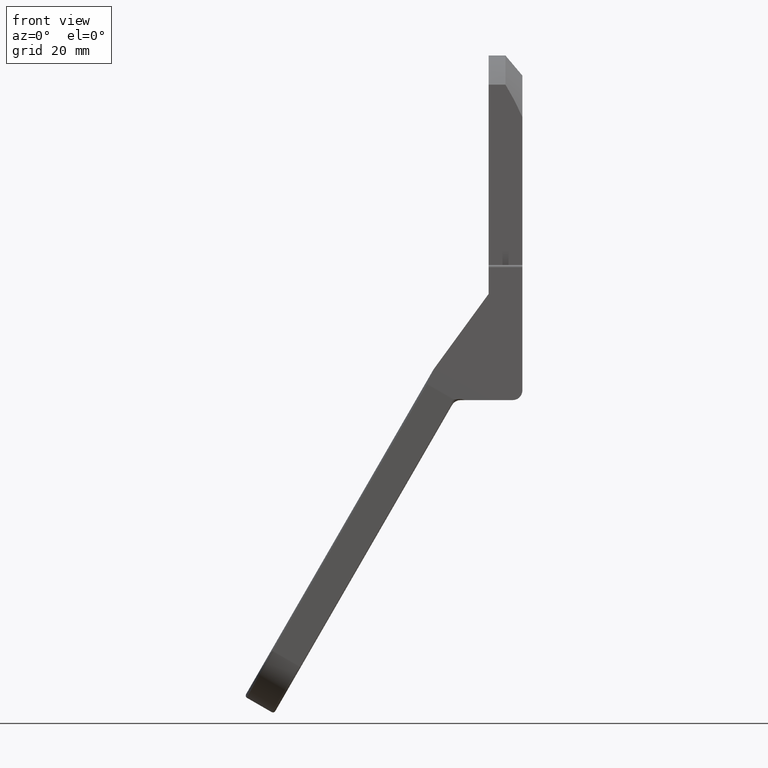
[diagram: clean part render]
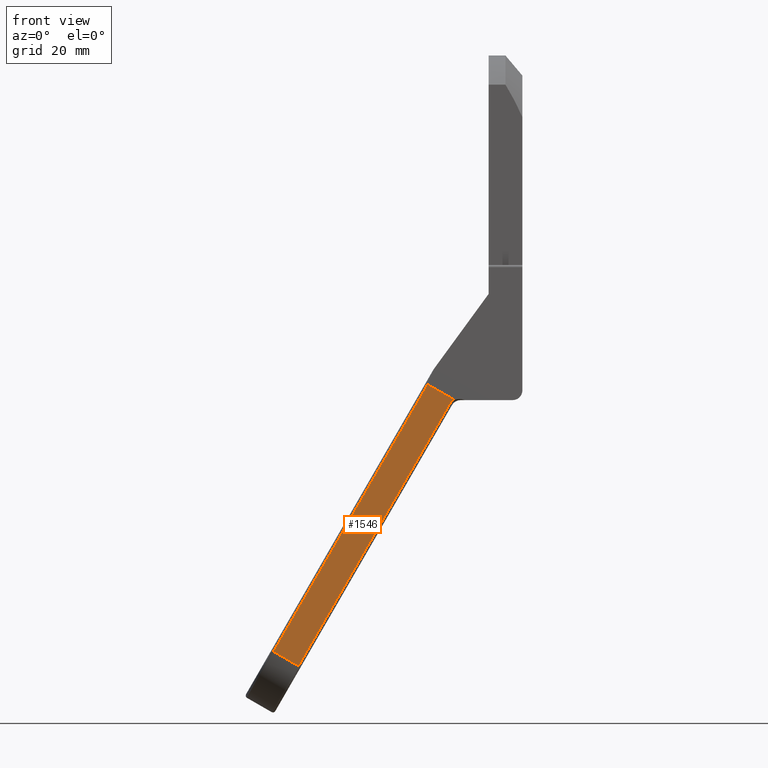
[diagram: same view with one face highlighted and labeled with its STEP entity id]
A machine part, front view. The second image highlights one B-rep face of the part: STEP entity #1546.
In plain terms, the highlighted face is a freeform B-spline surface patch.
Its self-contained STEP definition (entity closure, byte-faithful):
#462=CARTESIAN_POINT('',(-39.404202938143399,-11.962939398213800,-105.125725867554190));
#463=VERTEX_POINT('',#462);
#529=CARTESIAN_POINT('',(-8.029995897592741,-16.905945305358149,-50.784005226110700));
#530=VERTEX_POINT('',#529);
#546=CARTESIAN_POINT('',(-39.404202938143399,-11.962939398213800,-105.125725867554190));
#547=CARTESIAN_POINT('',(-8.029995897592741,-16.905945305358149,-50.784005226110700));
#548=QUASI_UNIFORM_CURVE('',1,(#546,#547),.UNSPECIFIED.,.F.,.U.);
#549=EDGE_CURVE('',#463,#530,#548,.T.);
#628=CARTESIAN_POINT('',(-7.170140873664250,-17.0,-49.901769120681699));
#629=VERTEX_POINT('',#628);
#659=CARTESIAN_POINT('',(-8.029995897592762,-16.905945305358149,-50.784005226110693));
#660=CARTESIAN_POINT('',(-7.712212411636412,-16.956012089396545,-50.233588082627683));
#661=CARTESIAN_POINT('',(-7.170140873664250,-17.0,-49.901769120681699));
#669=(BOUNDED_CURVE()B_SPLINE_CURVE(2,(#659,#660,#661),.UNSPECIFIED.,.F.,.U.)CURVE()GEOMETRIC_REPRESENTATION_ITEM()QUASI_UNIFORM_CURVE()RATIONAL_B_SPLINE_CURVE((1.0,0.969170961019942,1.0))REPRESENTATION_ITEM(''));
#670=EDGE_CURVE('',#530,#629,#669,.T.);
#810=CARTESIAN_POINT('',(-44.600355360850848,-11.962939398213800,-102.125725867555200));
#811=VERTEX_POINT('',#810);
#892=CARTESIAN_POINT('',(-12.629165124598320,-17.0,-46.749999999890612));
#893=VERTEX_POINT('',#892);
#894=CARTESIAN_POINT('',(-12.629165124598320,-17.0,-46.749999999890612));
#895=CARTESIAN_POINT('',(-44.600355360850848,-11.962939398213800,-102.125725867555200));
#896=QUASI_UNIFORM_CURVE('',1,(#894,#895),.UNSPECIFIED.,.F.,.U.);
#897=EDGE_CURVE('',#893,#811,#896,.T.);
#1504=CARTESIAN_POINT('',(-39.404202938143399,-11.962939398213800,-105.125725867554190));
#1505=CARTESIAN_POINT('',(-44.600355360850848,-11.962939398213800,-102.125725867555200));
#1506=QUASI_UNIFORM_CURVE('',1,(#1504,#1505),.UNSPECIFIED.,.F.,.U.);
#1507=EDGE_CURVE('',#463,#811,#1506,.T.);
#1530=CARTESIAN_POINT('',(-46.469996258779162,-15.872436976359010,-43.740044654798893));
#1531=CARTESIAN_POINT('',(-46.469996258779162,-11.486757095269921,-108.026269244423200));
#1532=CARTESIAN_POINT('',(-5.300500645040305,-17.486488353286902,-43.850157088621593));
#1533=CARTESIAN_POINT('',(-5.300500645040305,-13.100808472197810,-108.136381678245900));
#1534=B_SPLINE_SURFACE_WITH_KNOTS('',1,1,((#1530,#1532),(#1531,#1533)),.UNSPECIFIED.,.F.,.F.,.U.,(2,2),(2,2),(0.0,64.435648984137728),(0.0,41.201270073689578),.UNSPECIFIED.);
#1535=ORIENTED_EDGE('',*,*,#549,.T.);
#1536=ORIENTED_EDGE('',*,*,#670,.T.);
#1537=CARTESIAN_POINT('',(-7.170140873664250,-17.0,-49.901769120681699));
#1538=CARTESIAN_POINT('',(-12.629165124598320,-17.0,-46.749999999890612));
#1539=QUASI_UNIFORM_CURVE('',1,(#1537,#1538),.UNSPECIFIED.,.F.,.U.);
#1540=EDGE_CURVE('',#629,#893,#1539,.T.);
#1541=ORIENTED_EDGE('',*,*,#1540,.T.);
#1542=ORIENTED_EDGE('',*,*,#897,.T.);
#1543=ORIENTED_EDGE('',*,*,#1507,.F.);
#1544=EDGE_LOOP('',(#1535,#1536,#1541,#1542,#1543));
#1545=FACE_OUTER_BOUND('',#1544,.T.);
#1546=ADVANCED_FACE('',(#1545),#1534,.T.);